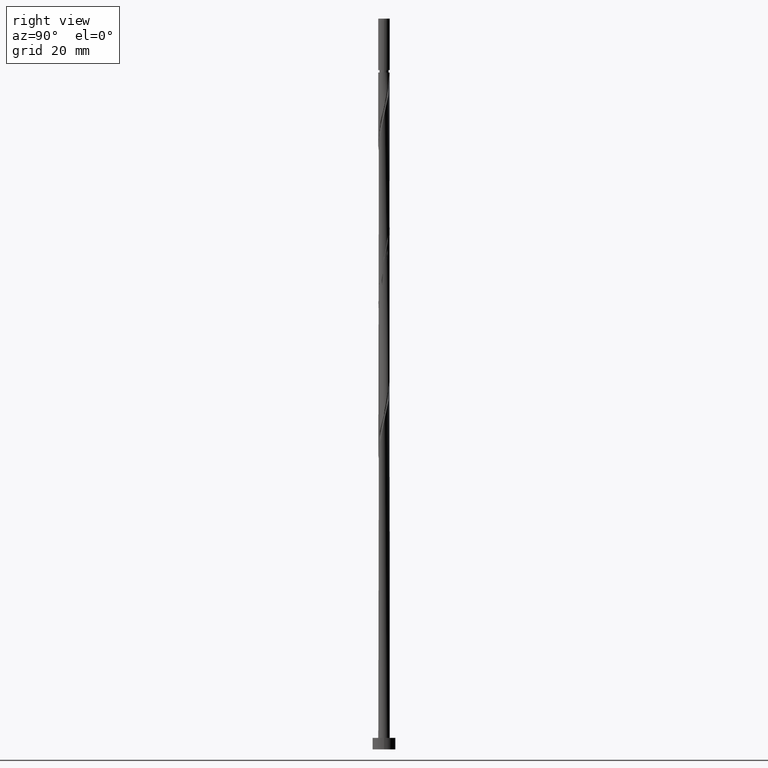
[diagram: clean part render]
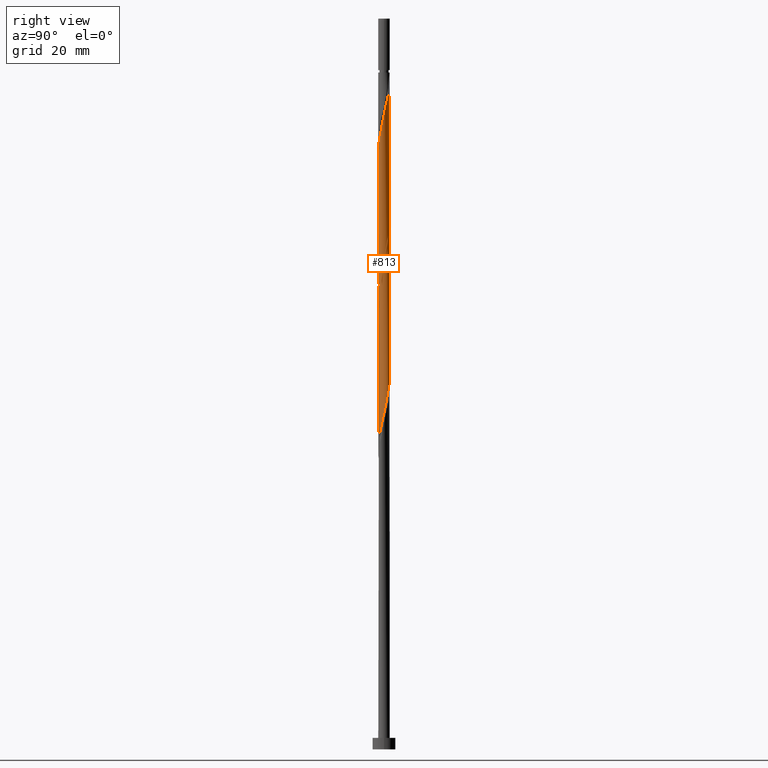
[diagram: same view with one face highlighted and labeled with its STEP entity id]
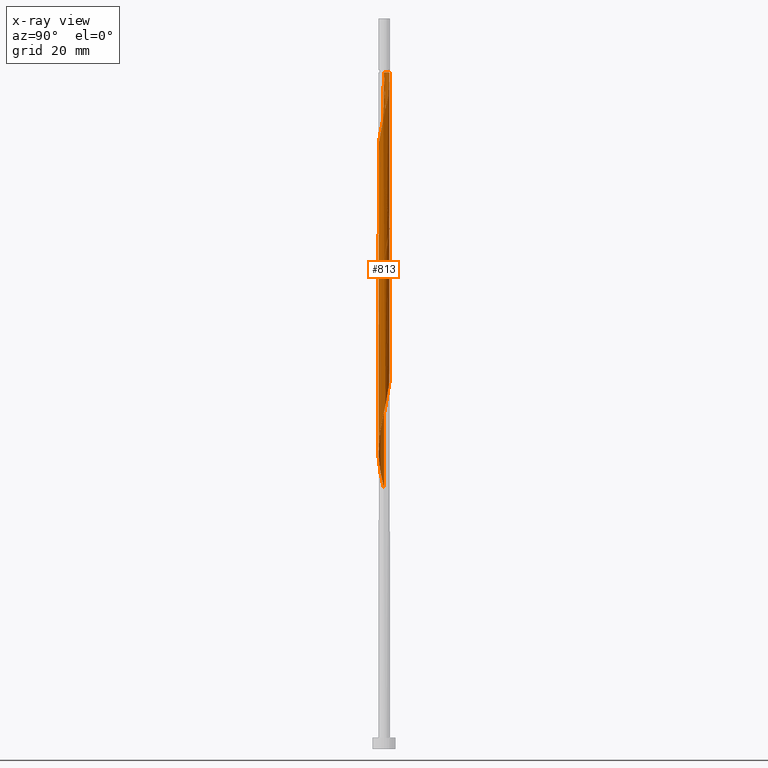
[diagram: x-ray of the same camera — body ghosted, the highlighted face saturated]
A machine part, right view. The second image highlights one B-rep face of the part: STEP entity #813.
The next image is the same camera in x-ray: the body ghosted, the highlighted face saturated — about 0% of this face is hidden behind the body in this view.
In plain terms, the highlighted cylindrical surface (bore or boss wall) has radius 1 mm, axis along (-0, -0, -1).
Its self-contained STEP definition (entity closure, byte-faithful):
#5 = CARTESIAN_POINT ( 'NONE',  ( -0.8003017030802034304, -0.6165949901442874248, 48.16064280264716047 ) ) ;
#15 = CARTESIAN_POINT ( 'NONE',  ( 0.8933318736010429362, 0.4718372192107772034, 112.4030670450713814 ) ) ;
#26 = CARTESIAN_POINT ( 'NONE',  ( -0.5941689777682044316, -0.8170896056626807402, 76.03943068143503581 ) ) ;
#28 = AXIS2_PLACEMENT_3D ( 'NONE', #1543, #485, #1391 ) ;
#81 = CARTESIAN_POINT ( 'NONE',  ( -0.8003017030802034304, -0.6165949901442874248, 74.82730946931380345 ) ) ;
#87 = CARTESIAN_POINT ( 'NONE',  ( 0.05809475930625013218, -1.008611519250725452, 103.9182185602229396 ) ) ;
#93 = CARTESIAN_POINT ( 'NONE',  ( 0.5941689777682046536, 0.8170896056626805182, 62.70609734810170011 ) ) ;
#94 = CARTESIAN_POINT ( 'NONE',  ( 0.8709502235331703091, -0.4913712528501480437, 108.1606428026472031 ) ) ;
#95 = CARTESIAN_POINT ( 'NONE',  ( 0.9741058992719017207, 0.2260922311882540559, 86.34246098446533324 ) ) ;
#103 = CARTESIAN_POINT ( 'NONE',  ( -0.4964241347574845364, 0.8799064019851151608, 94.22124886325322279 ) ) ;
#104 = DIRECTION ( 'NONE',  ( -0.000000000000000000, -0.000000000000000000, -1.000000000000000000 ) ) ;
#108 = CARTESIAN_POINT ( 'NONE',  ( -0.9417047178041597633, 0.3364405214378776154, 70.58488522688958255 ) ) ;
#109 = CARTESIAN_POINT ( 'NONE',  ( -0.6103189422011784382, -0.7921557856826128008, 100.8879155299199226 ) ) ;
#110 = CYLINDRICAL_SURFACE ( 'NONE', #28, 1.000000000000000000 ) ;
#116 = CARTESIAN_POINT ( 'NONE',  ( -0.05809475930625040280, -1.008611519250725674, 51.79700643901080070 ) ) ;
#117 = CARTESIAN_POINT ( 'NONE',  ( -0.4964241347574847585, -0.8799064019851151608, 101.4939761359804891 ) ) ;
#125 = CARTESIAN_POINT ( 'NONE',  ( 0.05809475930625013218, 1.008611519250725452, 65.13033977234414351 ) ) ;
#129 = VECTOR ( 'NONE', #1276, 1000.000000000000000 ) ;
#140 = CARTESIAN_POINT ( 'NONE',  ( -1.000000000000001554, -6.244472643709706165E-16, 97.00815802031597457 ) ) ;
#180 = VERTEX_POINT ( 'NONE', #920 ) ;
#198 = ORIENTED_EDGE ( 'NONE', *, *, #1407, .T. ) ;
#206 = CARTESIAN_POINT ( 'NONE',  ( -0.8709502235331703091, -0.4913712528501478216, 74.22124886325323700 ) ) ;
#208 = DIRECTION ( 'NONE',  ( -0.000000000000000000, -0.000000000000000000, -1.000000000000000000 ) ) ;
#214 = ORIENTED_EDGE ( 'NONE', *, *, #1383, .F. ) ;
#216 = CARTESIAN_POINT ( 'NONE',  ( -1.000000000000001998, -0.02877552652381883819, 97.13025602503418554 ) ) ;
#217 = CARTESIAN_POINT ( 'NONE',  ( 0.8709502235331700870, 0.4913712528501480437, 87.55458219658656560 ) ) ;
#230 = CARTESIAN_POINT ( 'NONE',  ( 0.5941689777682046536, 0.8170896056626805182, 89.37276401476836440 ) ) ;
#236 = CARTESIAN_POINT ( 'NONE',  ( 1.006613054557665921, 0.08603694682050080922, 59.06973371173806697 ) ) ;
#240 = CARTESIAN_POINT ( 'NONE',  ( 0.1989974874213244482, 0.9800000000000015365, 91.19094583295020584 ) ) ;
#244 = CARTESIAN_POINT ( 'NONE',  ( -0.5941689777682044316, -0.8170896056626807402, 49.37276401476837151 ) ) ;
#252 = CARTESIAN_POINT ( 'NONE',  ( 0.9900775620072769234, -0.2010438236649778609, 57.85761249961685593 ) ) ;
#256 = CARTESIAN_POINT ( 'NONE',  ( 0.7242137496448722844, -0.7044051693801105518, 82.10003674204108393 ) ) ;
#267 = ORIENTED_EDGE ( 'NONE', *, *, #695, .T. ) ;
#277 = CARTESIAN_POINT ( 'NONE',  ( -1.000000000000000000, 0.000000000000000000, 127.2300000000000040 ) ) ;
#284 = CARTESIAN_POINT ( 'NONE',  ( -0.1989974874213243650, -0.9800000000000015365, 77.85761249961687724 ) ) ;
#285 = VERTEX_POINT ( 'NONE', #834 ) ;
#292 =( BOUNDED_CURVE ( )  B_SPLINE_CURVE ( 2, ( #836, #698, #943, #810, #1269, #1300, #1420, #1283, #1413, #103, #922, #362, #1398, #714, #240, #353, #1275, #230, #1519, #1178, #217, #690, #95, #574, #1170 ),
 .UNSPECIFIED., .F., .T. ) 
 B_SPLINE_CURVE_WITH_KNOTS ( ( 3, 2, 2, 2, 2, 2, 2, 2, 2, 2, 2, 2, 3 ),
 ( 0.4295252162417511621, 0.4318181818181818232, 0.4431818181818181768, 0.4545454545454545303, 0.4659090909090908839, 0.4772727272727272929, 0.4886363636363636465, 0.5000000000000000000, 0.5113636363636363535, 0.5227272727272727071, 0.5340909090909090606, 0.5454545454545454142, 0.5545252162417513286 ),
 .UNSPECIFIED. ) 
 CURVE ( )  GEOMETRIC_REPRESENTATION_ITEM ( )  RATIONAL_B_SPLINE_CURVE ( ( 0.9061101570135561278, 0.9072237824201383471, 0.9090909090909159440, 0.8998376744372184044, 0.9090909090909159440, 0.8998376744372184044, 0.9090909090909159440, 0.8998376744372184044, 0.9090909090909159440, 0.8998376744372184044, 0.9090909090909159440, 0.8998376744372184044, 0.9090909090909159440, 0.8998376744372184044, 0.9090909090909159440, 0.8998376744372184044, 0.9090909090909159440, 0.8998376744372184044, 0.9090909090909159440, 0.8998376744372184044, 0.9090909090909159440, 0.8998376744372184044, 0.9090909090909159440, 0.9017048011079957792, 0.9061101570135564609 ) ) 
 REPRESENTATION_ITEM ( '' )  );
#327 = EDGE_CURVE ( 'NONE', #1455, #821, #719, .T. ) ;
#342 = CARTESIAN_POINT ( 'NONE',  ( -1.000000000000001554, -0.1145289273851241296, 45.85969359855572236 ) ) ;
#343 = CARTESIAN_POINT ( 'NONE',  ( 1.006613054557666143, -0.08603694682050122555, 109.9788246208289877 ) ) ;
#350 = CARTESIAN_POINT ( 'NONE',  ( 1.000000000000001776, -9.235836784409077705E-16, 85.37373364558442290 ) ) ;
#353 = CARTESIAN_POINT ( 'NONE',  ( 0.3399002155363984867, 0.9513884807492771767, 90.58488522688958255 ) ) ;
#359 = CARTESIAN_POINT ( 'NONE',  ( -0.9983453082824714775, 0.05750343842223841484, 71.79700643901080070 ) ) ;
#362 = CARTESIAN_POINT ( 'NONE',  ( -0.2284171888200533240, 0.9841228509061520358, 93.00912765113199043 ) ) ;
#372 = CARTESIAN_POINT ( 'NONE',  ( -0.8709502235331703091, -0.4913712528501478216, 47.55458219658657271 ) ) ;
#377 = CARTESIAN_POINT ( 'NONE',  ( 0.9900775620072769234, -0.2010438236649778609, 84.52427916628350602 ) ) ;
#424 = DIRECTION ( 'NONE',  ( -0.000000000000000000, -0.000000000000000000, -1.000000000000000000 ) ) ;
#450 = CARTESIAN_POINT ( 'NONE',  ( 0.4670345966523012371, -0.8842390432059793470, 105.7364003784047668 ) ) ;
#451 =( BOUNDED_CURVE ( )  B_SPLINE_CURVE ( 2, ( #944, #1185, #615, #377, #1294, #1171, #848, #256, #876, #1344, #530, #1353, #1228, #769, #284, #756, #655, #26, #499, #81, #206, #1410, #1040, #1516, #359, #815, #108, #1289, #594, #1281, #1175, #1313, #832, #1060, #702, #125, #571, #582, #696, #93, #1167, #1539, #956, #840, #940, #236, #1046, #252, #1431, #465, #456, #587, #1524, #711, #1053, #1531, #472, #116, #482, #1425, #1304, #244, #605, #5, #372, #1155, #1298, #342, #1523 ),
 .UNSPECIFIED., .F., .T. ) 
 B_SPLINE_CURVE_WITH_KNOTS ( ( 3, 2, 2, 2, 2, 2, 2, 2, 2, 2, 2, 2, 2, 2, 2, 2, 2, 2, 2, 2, 2, 2, 2, 2, 2, 2, 2, 2, 2, 2, 2, 2, 2, 2, 3 ),
 ( 0.5545252162417513286, 0.5568181818181817677, 0.5681818181818182323, 0.5795454545454545858, 0.5909090909090909394, 0.6022727272727272929, 0.6136363636363636465, 0.6250000000000000000, 0.6363636363636363535, 0.6477272727272727071, 0.6590909090909090606, 0.6704545454545454142, 0.6818181818181817677, 0.6931818181818182323, 0.7045454545454545858, 0.7159090909090909394, 0.7272727272727272929, 0.7386363636363636465, 0.7500000000000000000, 0.7613636363636363535, 0.7727272727272727071, 0.7840909090909090606, 0.7954545454545454142, 0.8068181818181817677, 0.8181818181818182323, 0.8295454545454545858, 0.8409090909090909394, 0.8522727272727272929, 0.8636363636363636465, 0.8750000000000000000, 0.8863636363636363535, 0.8977272727272727071, 0.9090909090909090606, 0.9204545454545454142, 0.9295252162417512176 ),
 .UNSPECIFIED. ) 
 CURVE ( )  GEOMETRIC_REPRESENTATION_ITEM ( )  RATIONAL_B_SPLINE_CURVE ( ( 0.9061101570135564609, 0.9072237824201385692, 0.9090909090909159440, 0.8998376744372184044, 0.9090909090909159440, 0.8998376744372184044, 0.9090909090909159440, 0.8998376744372184044, 0.9090909090909159440, 0.8998376744372184044, 0.9090909090909159440, 0.8998376744372184044, 0.9090909090909159440, 0.8998376744372184044, 0.9090909090909159440, 0.8998376744372184044, 0.9090909090909159440, 0.8998376744372184044, 0.9090909090909159440, 0.8998376744372184044, 0.9090909090909159440, 0.8998376744372184044, 0.9090909090909159440, 0.8998376744372184044, 0.9090909090909159440, 0.8998376744372184044, 0.9090909090909159440, 0.8998376744372184044, 0.9090909090909159440, 0.8998376744372184044, 0.9090909090909159440, 0.8998376744372184044, 0.9090909090909159440, 0.8998376744372184044, 0.9090909090909159440, 0.8998376744372184044, 0.9090909090909159440, 0.8998376744372184044, 0.9090909090909159440, 0.8998376744372184044, 0.9090909090909159440, 0.8998376744372184044, 0.9090909090909159440, 0.8998376744372184044, 0.9090909090909159440, 0.8998376744372184044, 0.9090909090909159440, 0.8998376744372184044, 0.9090909090909159440, 0.8998376744372184044, 0.9090909090909159440, 0.8998376744372184044, 0.9090909090909159440, 0.8998376744372184044, 0.9090909090909159440, 0.8998376744372184044, 0.9090909090909159440, 0.8998376744372184044, 0.9090909090909159440, 0.8998376744372184044, 0.9090909090909159440, 0.8998376744372184044, 0.9090909090909159440, 0.8998376744372184044, 0.9090909090909159440, 0.8998376744372184044, 0.9090909090909159440, 0.9017048011079958902, 0.9061101570135562389 ) ) 
 REPRESENTATION_ITEM ( '' )  );
#456 = CARTESIAN_POINT ( 'NONE',  ( 0.8087728116229573327, -0.5881211942954441829, 56.03943068143504291 ) ) ;
#457 = CARTESIAN_POINT ( 'NONE',  ( 0.9415987439861374098, -0.3661475155560076633, 108.7667034087078122 ) ) ;
#460 = ORIENTED_EDGE ( 'NONE', *, *, #1260, .F. ) ;
#465 = CARTESIAN_POINT ( 'NONE',  ( 0.8933318736010427141, -0.4718372192107774254, 56.64549128749564488 ) ) ;
#472 = CARTESIAN_POINT ( 'NONE',  ( 0.08516121475690130449, -0.9963671850784389106, 52.40306704507140267 ) ) ;
#474 = CARTESIAN_POINT ( 'NONE',  ( 0.000000000000000000, 0.000000000000000000, 117.8576124996168630 ) ) ;
#479 = AXIS2_PLACEMENT_3D ( 'NONE', #474, #208, #1034 ) ;
#482 = CARTESIAN_POINT ( 'NONE',  ( -0.1989974874213243650, -0.9800000000000015365, 51.19094583295019874 ) ) ;
#485 = DIRECTION ( 'NONE',  ( -0.000000000000000000, -0.000000000000000000, -1.000000000000000000 ) ) ;
#497 = CARTESIAN_POINT ( 'NONE',  ( -0.05809475930625142281, 1.008611519250725674, 117.2515518935562682 ) ) ;
#499 = CARTESIAN_POINT ( 'NONE',  ( -0.6972353404242043196, -0.7168422979034839715, 75.43337007537441252 ) ) ;
#522 = CARTESIAN_POINT ( 'NONE',  ( 0.4964241347574844254, 0.8799064019851153828, 114.8273094693138461 ) ) ;
#530 = CARTESIAN_POINT ( 'NONE',  ( 0.3624206617887689164, -0.9320146264456334873, 80.28185492385929933 ) ) ;
#541 = LINE ( 'NONE', #277, #854 ) ;
#571 = CARTESIAN_POINT ( 'NONE',  ( 0.1989974874213244482, 0.9800000000000015365, 64.52427916628353444 ) ) ;
#574 = CARTESIAN_POINT ( 'NONE',  ( 1.000000000000001998, 0.1145289273851224227, 85.85969359855573657 ) ) ;
#582 = CARTESIAN_POINT ( 'NONE',  ( 0.3399002155363984867, 0.9513884807492771767, 63.91821856022292536 ) ) ;
#587 = CARTESIAN_POINT ( 'NONE',  ( 0.7242137496448722844, -0.7044051693801105518, 55.43337007537444094 ) ) ;
#588 = CARTESIAN_POINT ( 'NONE',  ( -0.3624206617887691939, -0.9320146264456335983, 102.1000367420410981 ) ) ;
#590 = EDGE_LOOP ( 'NONE', ( #460, #267, #640, #198, #919, #214, #1109, #1133 ) ) ;
#594 = CARTESIAN_POINT ( 'NONE',  ( -0.8087728116229573327, 0.5881211942954442939, 69.37276401476837862 ) ) ;
#595 = CARTESIAN_POINT ( 'NONE',  ( -0.2284171888200533240, -0.9841228509061522578, 102.7060973481017214 ) ) ;
#605 = CARTESIAN_POINT ( 'NONE',  ( -0.6972353404242043196, -0.7168422979034839715, 48.76670340870776954 ) ) ;
#615 = CARTESIAN_POINT ( 'NONE',  ( 0.9983453082824714775, -0.05750343842223853974, 85.13033977234415772 ) ) ;
#636 = CARTESIAN_POINT ( 'NONE',  ( 0.08516121475690170695, 0.9963671850784390216, 116.6454912874956733 ) ) ;
#640 = ORIENTED_EDGE ( 'NONE', *, *, #327, .F. ) ;
#655 = CARTESIAN_POINT ( 'NONE',  ( -0.4670345966523014036, -0.8842390432059792360, 76.64549128749564488 ) ) ;
#656 = VERTEX_POINT ( 'NONE', #1534 ) ;
#689 = CARTESIAN_POINT ( 'NONE',  ( 0.6972353404242042085, -0.7168422979034841935, 106.9485215905259565 ) ) ;
#690 = CARTESIAN_POINT ( 'NONE',  ( 0.9415987439861371877, 0.3661475155560071637, 86.94852159052592810 ) ) ;
#695 = EDGE_CURVE ( 'NONE', #285, #821, #752, .T. ) ;
#696 = CARTESIAN_POINT ( 'NONE',  ( 0.4670345966523015147, 0.8842390432059790140, 63.31215795416232339 ) ) ;
#698 = CARTESIAN_POINT ( 'NONE',  ( -1.000000000000001776, 0.02877552652382003862, 98.58496897419955474 ) ) ;
#702 = CARTESIAN_POINT ( 'NONE',  ( -0.08516121475690160980, 0.9963671850784389106, 65.73640037840473838 ) ) ;
#703 = CARTESIAN_POINT ( 'NONE',  ( -0.8933318736010429362, -0.4718372192107775365, 99.06973371173808118 ) ) ;
#705 = FACE_OUTER_BOUND ( 'NONE', #590, .T. ) ;
#711 = CARTESIAN_POINT ( 'NONE',  ( 0.4964241347574844254, -0.8799064019851151608, 54.22124886325322279 ) ) ;
#714 = CARTESIAN_POINT ( 'NONE',  ( 0.05809475930625013218, 1.008611519250725452, 91.79700643901080070 ) ) ;
#715 = EDGE_CURVE ( 'NONE', #656, #1157, #292, .T. ) ;
#719 =( BOUNDED_CURVE ( )  B_SPLINE_CURVE ( 2, ( #823, #216, #1290, #1418, #1176, #703, #1403, #1168, #109, #117, #588, #595, #1427, #87, #1517, #1033, #450, #1396, #689, #1156, #94, #457, #928, #343, #1282, #1432, #743, #15, #978, #720, #1069, #522, #1106, #1199, #636, #497, #1095 ),
 .UNSPECIFIED., .F., .T. ) 
 B_SPLINE_CURVE_WITH_KNOTS ( ( 3, 2, 2, 2, 2, 2, 2, 2, 2, 2, 2, 2, 2, 2, 2, 2, 2, 2, 3 ),
 ( 0.5545252162417511066, 0.5568181818181818787, 0.5681818181818181213, 0.5795454545454545858, 0.5909090909090908283, 0.6022727272727272929, 0.6136363636363636465, 0.6250000000000000000, 0.6363636363636363535, 0.6477272727272727071, 0.6590909090909091717, 0.6704545454545455252, 0.6818181818181818787, 0.6931818181818182323, 0.7045454545454546968, 0.7159090909090909394, 0.7272727272727274039, 0.7386363636363637575, 0.7500000000000001110 ),
 .UNSPECIFIED. ) 
 CURVE ( )  GEOMETRIC_REPRESENTATION_ITEM ( )  RATIONAL_B_SPLINE_CURVE ( ( 0.9061101570135668970, 0.9072237824201490053, 0.9090909090909268242, 0.8998376744372290625, 0.9090909090909268242, 0.8998376744372290625, 0.9090909090909268242, 0.8998376744372290625, 0.9090909090909268242, 0.8998376744372290625, 0.9090909090909268242, 0.8998376744372290625, 0.9090909090909268242, 0.8998376744372290625, 0.9090909090909268242, 0.8998376744372290625, 0.9090909090909268242, 0.8998376744372290625, 0.9090909090909268242, 0.8998376744372290625, 0.9090909090909268242, 0.8998376744372290625, 0.9090909090909268242, 0.8998376744372290625, 0.9090909090909268242, 0.8998376744372290625, 0.9090909090909268242, 0.8998376744372290625, 0.9090909090909268242, 0.8998376744372290625, 0.9090909090909268242, 0.8998376744372290625, 0.9090909090909268242, 0.8998376744372290625, 0.9090909090909268242, 0.8998376744372289515, 0.9090909090909269352 ) ) 
 REPRESENTATION_ITEM ( '' )  );
#720 = CARTESIAN_POINT ( 'NONE',  ( 0.7242137496448726175, 0.7044051693801105518, 113.6151882571926279 ) ) ;
#722 = CARTESIAN_POINT ( 'NONE',  ( -1.000000000000001776, 7.104489834160828928E-16, 45.37373364558442290 ) ) ;
#743 = CARTESIAN_POINT ( 'NONE',  ( 0.9417047178041598743, 0.3364405214378773934, 111.7970064390108007 ) ) ;
#752 = CIRCLE ( 'NONE', #479, 0.9999999999999976685 ) ;
#756 = CARTESIAN_POINT ( 'NONE',  ( -0.3399002155363983202, -0.9513884807492771767, 77.25155189355625396 ) ) ;
#769 = CARTESIAN_POINT ( 'NONE',  ( -0.05809475930625040280, -1.008611519250725674, 78.46367310567747211 ) ) ;
#803 = CARTESIAN_POINT ( 'NONE',  ( 1.000000000000000000, 1.224646799147353207E-16, 127.2300000000000040 ) ) ;
#810 = CARTESIAN_POINT ( 'NONE',  ( -0.9900775620072769234, 0.2010438236649777222, 97.85761249961686303 ) ) ;
#813 = ADVANCED_FACE ( 'NONE', ( #705 ), #110, .T. ) ;
#815 = CARTESIAN_POINT ( 'NONE',  ( -0.9900775620072769234, 0.2010438236649777222, 71.19094583295019163 ) ) ;
#821 = VERTEX_POINT ( 'NONE', #973 ) ;
#823 = CARTESIAN_POINT ( 'NONE',  ( -1.000000000000001554, -6.244472643709706165E-16, 97.00815802031598878 ) ) ;
#832 = CARTESIAN_POINT ( 'NONE',  ( -0.3624206617887689164, 0.9320146264456334873, 66.94852159052594232 ) ) ;
#834 = CARTESIAN_POINT ( 'NONE',  ( -0.9999999999999976685, 0.000000000000000000, 117.8576124996168630 ) ) ;
#836 = CARTESIAN_POINT ( 'NONE',  ( -1.000000000000001776, -6.805353420090899465E-16, 98.70706697891775150 ) ) ;
#840 = CARTESIAN_POINT ( 'NONE',  ( 0.9415987439861371877, 0.3661475155560071637, 60.28185492385927091 ) ) ;
#848 = CARTESIAN_POINT ( 'NONE',  ( 0.8087728116229573327, -0.5881211942954441829, 82.70609734810172142 ) ) ;
#854 = VECTOR ( 'NONE', #424, 1000.000000000000000 ) ;
#876 = CARTESIAN_POINT ( 'NONE',  ( 0.6103189422011782161, -0.7921557856826132449, 81.49397613598051748 ) ) ;
#919 = ORIENTED_EDGE ( 'NONE', *, *, #1479, .F. ) ;
#920 = CARTESIAN_POINT ( 'NONE',  ( 1.000000000000000000, 1.224646799147353207E-16, 117.8576124996168630 ) ) ;
#922 = CARTESIAN_POINT ( 'NONE',  ( -0.3624206617887689164, 0.9320146264456334873, 93.61518825719261372 ) ) ;
#928 = CARTESIAN_POINT ( 'NONE',  ( 0.9741058992719017207, -0.2260922311882544444, 109.3727640147683928 ) ) ;
#940 = CARTESIAN_POINT ( 'NONE',  ( 0.9741058992719017207, 0.2260922311882540559, 59.67579431779868315 ) ) ;
#943 = CARTESIAN_POINT ( 'NONE',  ( -0.9983453082824714775, 0.05750343842223841484, 98.46367310567748632 ) ) ;
#944 = CARTESIAN_POINT ( 'NONE',  ( 1.000000000000001776, -9.235836784409077705E-16, 85.37373364558442290 ) ) ;
#956 = CARTESIAN_POINT ( 'NONE',  ( 0.8709502235331700870, 0.4913712528501480437, 60.88791552991988709 ) ) ;
#973 = CARTESIAN_POINT ( 'NONE',  ( -0.1989974874213520928, 0.9800000000002812017, 117.8576124996168488 ) ) ;
#978 = CARTESIAN_POINT ( 'NONE',  ( 0.8087728116229575548, 0.5881211942954440719, 113.0091276511320189 ) ) ;
#988 = VERTEX_POINT ( 'NONE', #722 ) ;
#1033 = CARTESIAN_POINT ( 'NONE',  ( 0.3399002155363982092, -0.9513884807492776208, 105.1303397723441293 ) ) ;
#1034 = DIRECTION ( 'NONE',  ( -1.000000000000000000, 0.000000000000000000, 0.000000000000000000 ) ) ;
#1035 = LINE ( 'NONE', #1520, #1477 ) ;
#1040 = CARTESIAN_POINT ( 'NONE',  ( -0.9741058992719017207, -0.2260922311882544167, 73.00912765113201885 ) ) ;
#1046 = CARTESIAN_POINT ( 'NONE',  ( 0.9983453082824714775, -0.05750343842223853974, 58.46367310567746500 ) ) ;
#1053 = CARTESIAN_POINT ( 'NONE',  ( 0.3624206617887689164, -0.9320146264456334873, 53.61518825719261372 ) ) ;
#1060 = CARTESIAN_POINT ( 'NONE',  ( -0.2284171888200533240, 0.9841228509061520358, 66.34246098446534745 ) ) ;
#1069 = CARTESIAN_POINT ( 'NONE',  ( 0.6103189422011783272, 0.7921557856826130228, 114.2212488632532512 ) ) ;
#1095 = CARTESIAN_POINT ( 'NONE',  ( -0.1989974874213520928, 0.9800000000002812017, 117.8576124996168488 ) ) ;
#1106 = CARTESIAN_POINT ( 'NONE',  ( 0.3624206617887688608, 0.9320146264456335983, 115.4333700753744694 ) ) ;
#1109 = ORIENTED_EDGE ( 'NONE', *, *, #1383, .T. ) ;
#1133 = ORIENTED_EDGE ( 'NONE', *, *, #715, .F. ) ;
#1155 = CARTESIAN_POINT ( 'NONE',  ( -0.9415987439861370767, -0.3661475155560078298, 46.94852159052594942 ) ) ;
#1156 = CARTESIAN_POINT ( 'NONE',  ( 0.8003017030802035414, -0.6165949901442878689, 107.5545821965865656 ) ) ;
#1157 = VERTEX_POINT ( 'NONE', #350 ) ;
#1167 = CARTESIAN_POINT ( 'NONE',  ( 0.6972353404242038755, 0.7168422979034843046, 62.10003674204111945 ) ) ;
#1168 = CARTESIAN_POINT ( 'NONE',  ( -0.7242137496448720624, -0.7044051693801109959, 100.2818549238592851 ) ) ;
#1170 = CARTESIAN_POINT ( 'NONE',  ( 1.000000000000001776, -9.235836784409077705E-16, 85.37373364558442290 ) ) ;
#1171 = CARTESIAN_POINT ( 'NONE',  ( 0.8933318736010427141, -0.4718372192107774254, 83.31215795416233050 ) ) ;
#1175 = CARTESIAN_POINT ( 'NONE',  ( -0.6103189422011783272, 0.7921557856826132449, 68.16064280264716047 ) ) ;
#1176 = CARTESIAN_POINT ( 'NONE',  ( -0.9417047178041598743, -0.3364405214378775044, 98.46367310567748632 ) ) ;
#1178 = CARTESIAN_POINT ( 'NONE',  ( 0.8003017030802030973, 0.6165949901442876468, 88.16064280264714625 ) ) ;
#1185 = CARTESIAN_POINT ( 'NONE',  ( 1.000000000000001554, -0.02877552652382299805, 85.25163564086621193 ) ) ;
#1199 = CARTESIAN_POINT ( 'NONE',  ( 0.2284171888200534350, 0.9841228509061522578, 116.0394306814350642 ) ) ;
#1228 = CARTESIAN_POINT ( 'NONE',  ( 0.08516121475690130449, -0.9963671850784389106, 79.06973371173808118 ) ) ;
#1260 = EDGE_CURVE ( 'NONE', #285, #656, #541, .T. ) ;
#1269 = CARTESIAN_POINT ( 'NONE',  ( -0.9417047178041597633, 0.3364405214378776154, 97.25155189355625396 ) ) ;
#1275 = CARTESIAN_POINT ( 'NONE',  ( 0.4670345966523015147, 0.8842390432059790140, 89.97882462082900190 ) ) ;
#1276 = DIRECTION ( 'NONE',  ( -0.000000000000000000, -0.000000000000000000, -1.000000000000000000 ) ) ;
#1281 = CARTESIAN_POINT ( 'NONE',  ( -0.7242137496448719514, 0.7044051693801107739, 68.76670340870775533 ) ) ;
#1282 = CARTESIAN_POINT ( 'NONE',  ( 0.9983453082824714775, 0.05750343842223819280, 110.5848852268896110 ) ) ;
#1283 = CARTESIAN_POINT ( 'NONE',  ( -0.7242137496448719514, 0.7044051693801107739, 95.43337007537442673 ) ) ;
#1289 = CARTESIAN_POINT ( 'NONE',  ( -0.8933318736010427141, 0.4718372192107777030, 69.97882462082897348 ) ) ;
#1290 = CARTESIAN_POINT ( 'NONE',  ( -0.9983453082824714775, -0.05750343842223831770, 97.25155189355625396 ) ) ;
#1294 = CARTESIAN_POINT ( 'NONE',  ( 0.9417047178041597633, -0.3364405214378777820, 83.91821856022292536 ) ) ;
#1298 = CARTESIAN_POINT ( 'NONE',  ( -0.9741058992719017207, -0.2260922311882544167, 46.34246098446533324 ) ) ;
#1300 = CARTESIAN_POINT ( 'NONE',  ( -0.8933318736010427141, 0.4718372192107777030, 96.64549128749567330 ) ) ;
#1304 = CARTESIAN_POINT ( 'NONE',  ( -0.4670345966523014036, -0.8842390432059792360, 49.97882462082898769 ) ) ;
#1313 = CARTESIAN_POINT ( 'NONE',  ( -0.4964241347574845364, 0.8799064019851151608, 67.55458219658653718 ) ) ;
#1344 = CARTESIAN_POINT ( 'NONE',  ( 0.4964241347574844254, -0.8799064019851151608, 80.88791552991989420 ) ) ;
#1353 = CARTESIAN_POINT ( 'NONE',  ( 0.2284171888200534906, -0.9841228509061520358, 79.67579431779864763 ) ) ;
#1383 = EDGE_CURVE ( 'NONE', #180, #1157, #1507, .T. ) ;
#1391 = DIRECTION ( 'NONE',  ( -1.000000000000000000, 0.000000000000000000, 0.000000000000000000 ) ) ;
#1396 = CARTESIAN_POINT ( 'NONE',  ( 0.5941689777682047646, -0.8170896056626807402, 106.3424609844653617 ) ) ;
#1398 = CARTESIAN_POINT ( 'NONE',  ( -0.08516121475690160980, 0.9963671850784389106, 92.40306704507140978 ) ) ;
#1403 = CARTESIAN_POINT ( 'NONE',  ( -0.8087728116229573327, -0.5881211942954442939, 99.67579431779867605 ) ) ;
#1407 = EDGE_CURVE ( 'NONE', #1455, #988, #1035, .T. ) ;
#1410 = CARTESIAN_POINT ( 'NONE',  ( -0.9415987439861370767, -0.3661475155560078298, 73.61518825719262793 ) ) ;
#1413 = CARTESIAN_POINT ( 'NONE',  ( -0.6103189422011783272, 0.7921557856826132449, 94.82730946931383187 ) ) ;
#1418 = CARTESIAN_POINT ( 'NONE',  ( -0.9900775620072773675, -0.2010438236649776944, 97.85761249961689145 ) ) ;
#1420 = CARTESIAN_POINT ( 'NONE',  ( -0.8087728116229573327, 0.5881211942954442939, 96.03943068143503581 ) ) ;
#1425 = CARTESIAN_POINT ( 'NONE',  ( -0.3399002155363983202, -0.9513884807492771767, 50.58488522688958255 ) ) ;
#1427 = CARTESIAN_POINT ( 'NONE',  ( -0.08516121475690160980, -0.9963671850784390216, 103.3121579541623305 ) ) ;
#1431 = CARTESIAN_POINT ( 'NONE',  ( 0.9417047178041597633, -0.3364405214378777820, 57.25155189355624685 ) ) ;
#1432 = CARTESIAN_POINT ( 'NONE',  ( 0.9900775620072773675, 0.2010438236649775279, 111.1909458329501916 ) ) ;
#1455 = VERTEX_POINT ( 'NONE', #140 ) ;
#1477 = VECTOR ( 'NONE', #104, 1000.000000000000000 ) ;
#1479 = EDGE_CURVE ( 'NONE', #1157, #988, #451, .T. ) ;
#1507 = LINE ( 'NONE', #803, #129 ) ;
#1516 = CARTESIAN_POINT ( 'NONE',  ( -1.006613054557665921, -0.08603694682050118392, 72.40306704507140978 ) ) ;
#1517 = CARTESIAN_POINT ( 'NONE',  ( 0.1989974874213241429, -0.9800000000000018696, 104.5242791662835202 ) ) ;
#1519 = CARTESIAN_POINT ( 'NONE',  ( 0.6972353404242038755, 0.7168422979034843046, 88.76670340870778375 ) ) ;
#1520 = CARTESIAN_POINT ( 'NONE',  ( -1.000000000000000000, 0.000000000000000000, 127.2300000000000040 ) ) ;
#1523 = CARTESIAN_POINT ( 'NONE',  ( -1.000000000000001776, 7.104489834160828928E-16, 45.37373364558442290 ) ) ;
#1524 = CARTESIAN_POINT ( 'NONE',  ( 0.6103189422011782161, -0.7921557856826132449, 54.82730946931383897 ) ) ;
#1531 = CARTESIAN_POINT ( 'NONE',  ( 0.2284171888200534906, -0.9841228509061520358, 53.00912765113200464 ) ) ;
#1534 = CARTESIAN_POINT ( 'NONE',  ( -1.000000000000001776, -6.805353420090899465E-16, 98.70706697891775150 ) ) ;
#1539 = CARTESIAN_POINT ( 'NONE',  ( 0.8003017030802030973, 0.6165949901442876468, 61.49397613598049617 ) ) ;
#1543 = CARTESIAN_POINT ( 'NONE',  ( 0.000000000000000000, 0.000000000000000000, 127.2300000000000040 ) ) ;